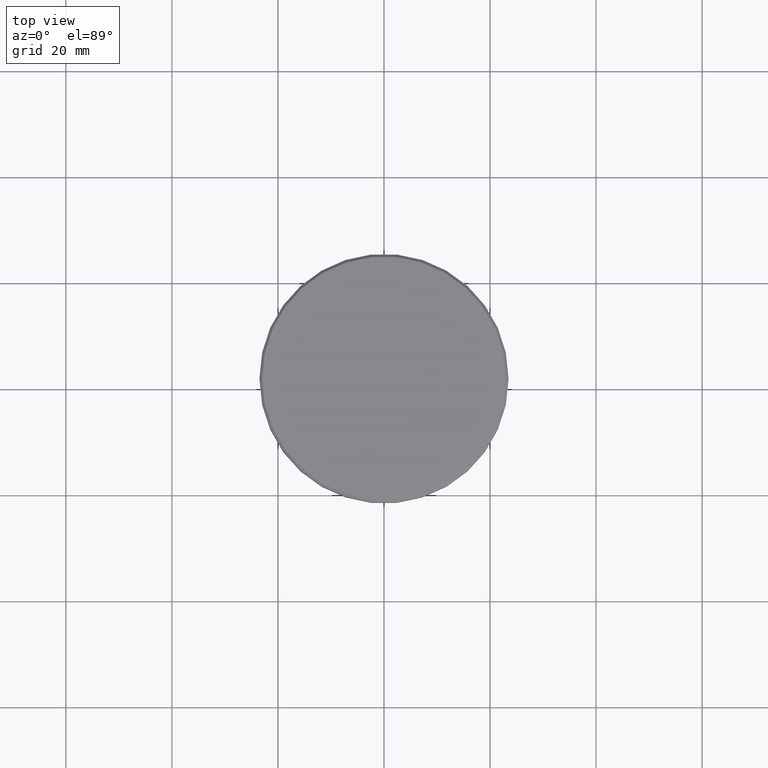
[diagram: clean part render]
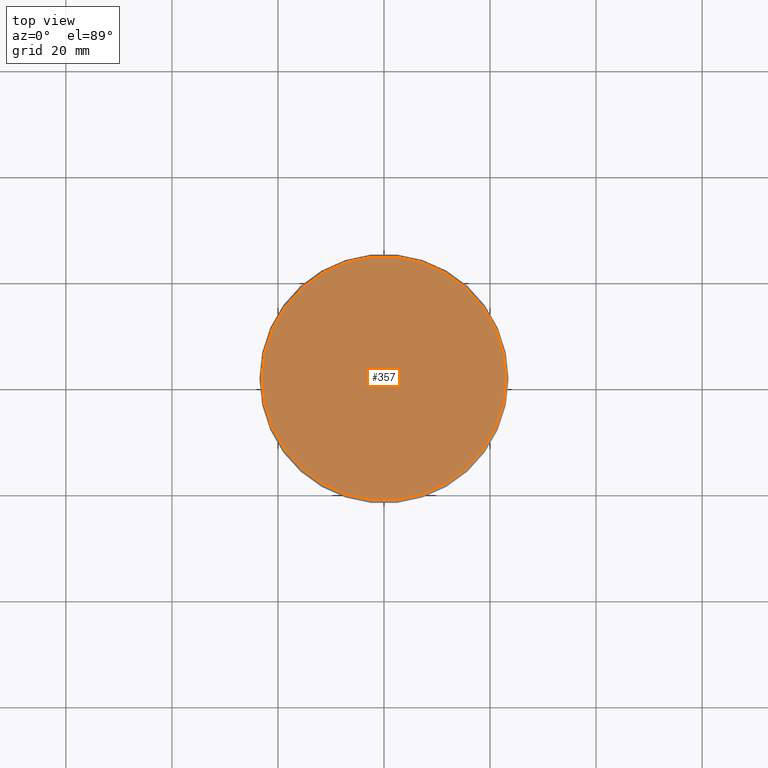
[diagram: same view with one face highlighted and labeled with its STEP entity id]
A machine part, top view. The second image highlights one B-rep face of the part: STEP entity #357.
In plain terms, the highlighted planar face has unit normal (0, -0, 1).
Its self-contained STEP definition (entity closure, byte-faithful):
#47 = AXIS2_PLACEMENT_3D ( 'NONE', #98, #281, #1092 ) ;
#98 = CARTESIAN_POINT ( 'NONE',  ( 0.000000000000000000, 0.000000000000000000, 0.000000000000000000 ) ) ;
#151 = EDGE_LOOP ( 'NONE', ( #317, #409 ) ) ;
#211 = AXIS2_PLACEMENT_3D ( 'NONE', #513, #312, #603 ) ;
#281 = DIRECTION ( 'NONE',  ( -0.000000000000000000, -0.000000000000000000, 1.000000000000000000 ) ) ;
#312 = DIRECTION ( 'NONE',  ( 0.000000000000000000, -0.000000000000000000, 1.000000000000000000 ) ) ;
#317 = ORIENTED_EDGE ( 'NONE', *, *, #579, .T. ) ;
#321 = FACE_OUTER_BOUND ( 'NONE', #151, .T. ) ;
#331 = CARTESIAN_POINT ( 'NONE',  ( -22.99999999999998224, 0.000000000000000000, 0.000000000000000000 ) ) ;
#357 = ADVANCED_FACE ( 'NONE', ( #321 ), #1040, .T. ) ;
#409 = ORIENTED_EDGE ( 'NONE', *, *, #834, .T. ) ;
#513 = CARTESIAN_POINT ( 'NONE',  ( 0.000000000000000000, 0.000000000000000000, 0.000000000000000000 ) ) ;
#579 = EDGE_CURVE ( 'NONE', #697, #963, #1013, .T. ) ;
#603 = DIRECTION ( 'NONE',  ( 1.000000000000000000, 0.000000000000000000, 0.000000000000000000 ) ) ;
#697 = VERTEX_POINT ( 'NONE', #331 ) ;
#831 = DIRECTION ( 'NONE',  ( -0.000000000000000000, -0.000000000000000000, 1.000000000000000000 ) ) ;
#834 = EDGE_CURVE ( 'NONE', #963, #697, #1082, .T. ) ;
#939 = AXIS2_PLACEMENT_3D ( 'NONE', #1061, #831, #1006 ) ;
#963 = VERTEX_POINT ( 'NONE', #1036 ) ;
#1006 = DIRECTION ( 'NONE',  ( 1.000000000000000000, 0.000000000000000000, 0.000000000000000000 ) ) ;
#1013 = CIRCLE ( 'NONE', #47, 22.99999999999998224 ) ;
#1036 = CARTESIAN_POINT ( 'NONE',  ( 22.99999999999998224, 2.847303808017595350E-15, 0.000000000000000000 ) ) ;
#1040 = PLANE ( 'NONE',  #211 ) ;
#1061 = CARTESIAN_POINT ( 'NONE',  ( 0.000000000000000000, 0.000000000000000000, 0.000000000000000000 ) ) ;
#1082 = CIRCLE ( 'NONE', #939, 22.99999999999998224 ) ;
#1092 = DIRECTION ( 'NONE',  ( 1.000000000000000000, 0.000000000000000000, 0.000000000000000000 ) ) ;